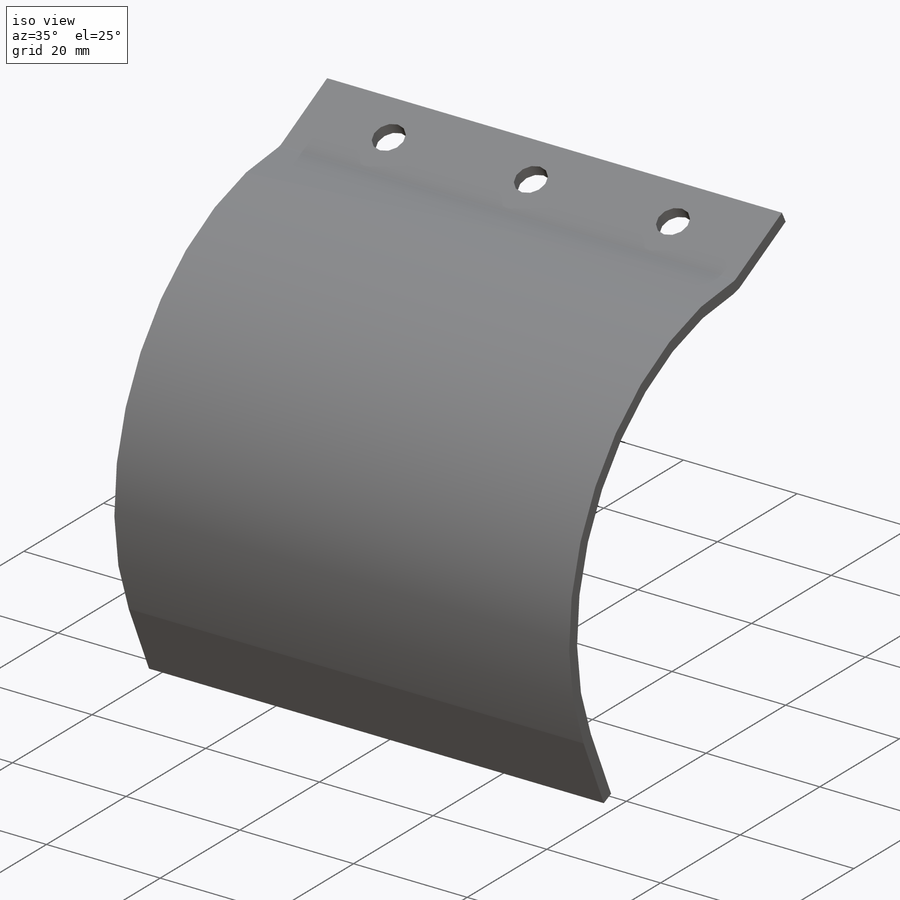
[diagram: iso view]
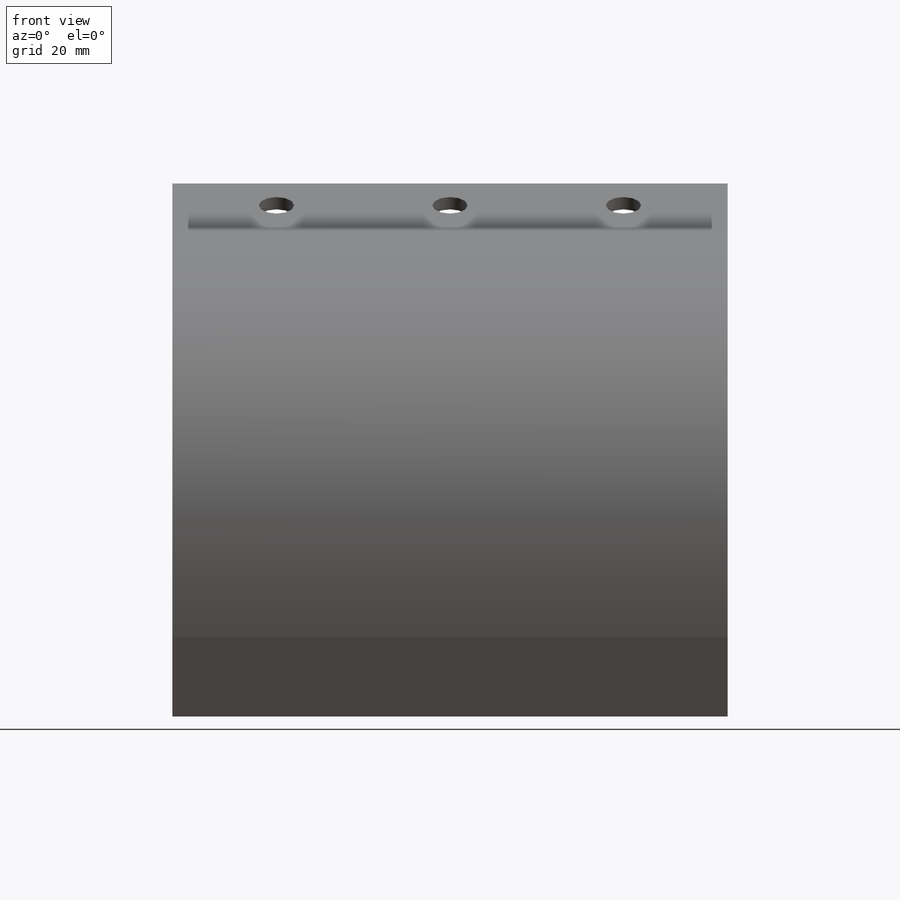
[diagram: front view]
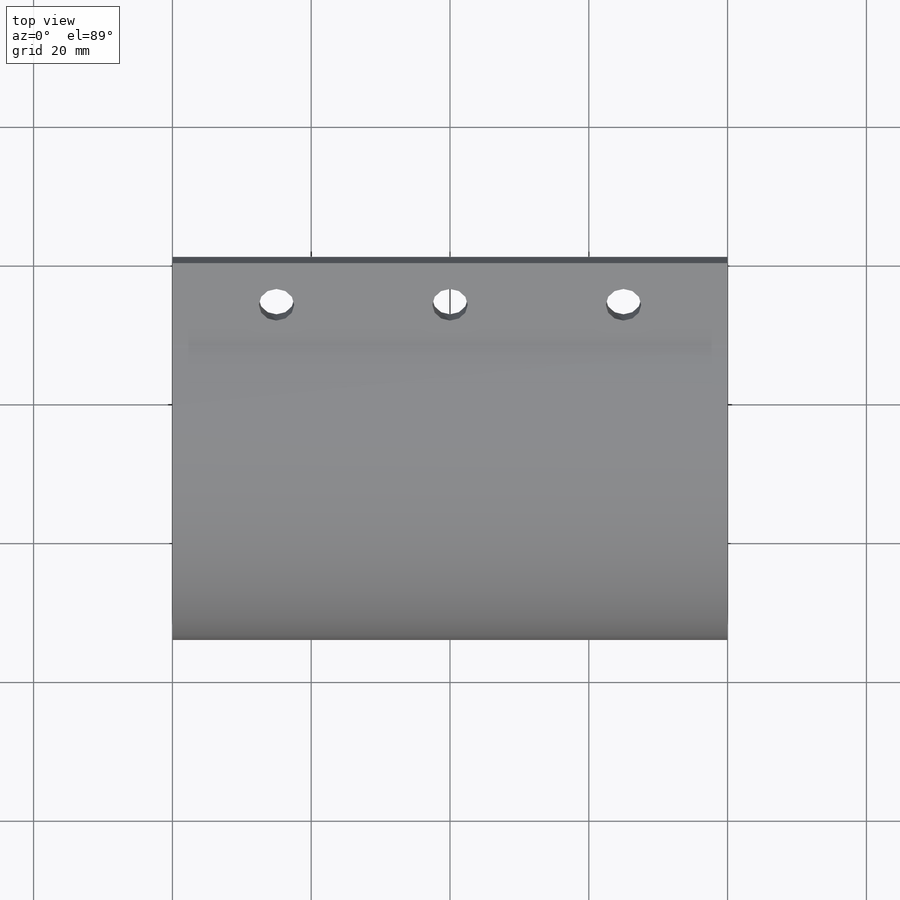
[diagram: top view]
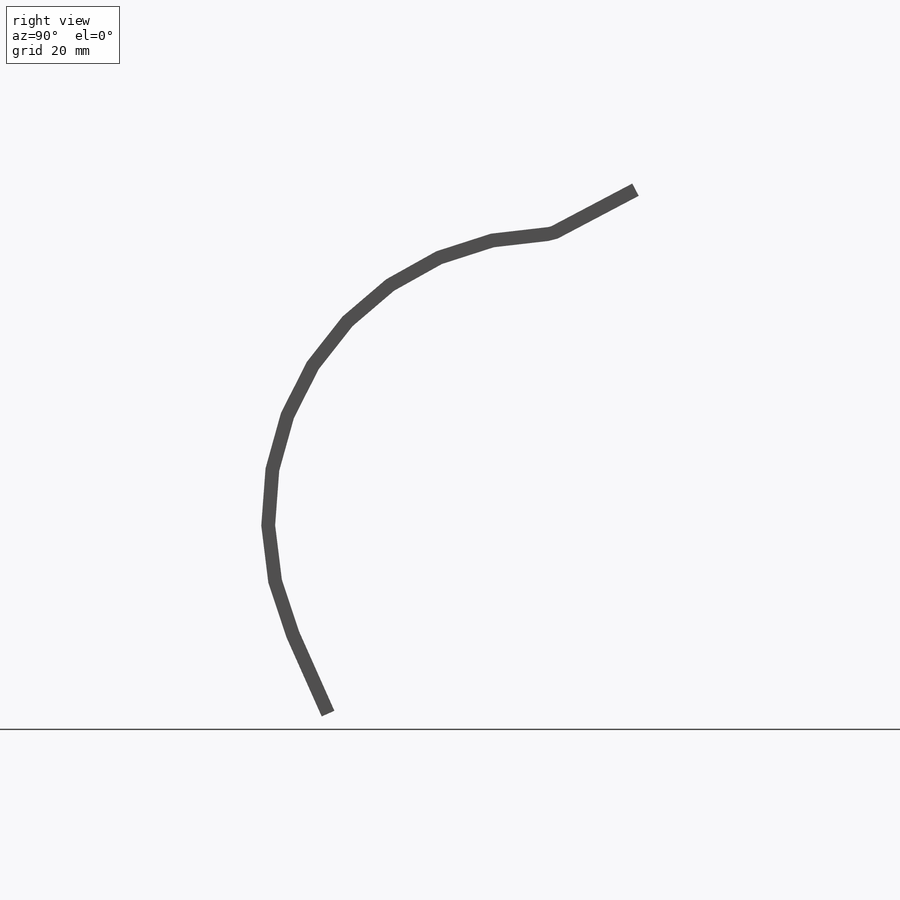
[diagram: right view]
SOLIDWORKS PART (.sldprt)
format: sldprt  version: not decoded by parser v0  size: 254,976 bytes
history: native  units: mm
features: sketch x7, plane x3, sheet_metal_op x2, material x1, hole x1, fillet x1 + 1 further entry (+9 scaffold rows collapsed; 1 parser-record rows omitted)
feature tree (26):
  scaffold x9  (default folders/planes/origin — collapsed)
  material  "Material <nicht festgelegt>"
  plane  "Ebene vorne"
  plane  "Ebene oben"
  plane  "Ebene rechts"
  sketch  "Skizze1"  dims[c1.D2=80.0mm c1.D1=~35.82192mm c2.D1=~49.245611deg c3.D1=~485.201532mm c3.D3=12.4mm c3.D4=46.5mm c3.D5=~1151.917306mm c3.D6=27.7mm c3.D7=31.5mm c4.D1=80.0mm c4.D6=10.0mm c4.D7=5.0mm]
  hole  "Ø5.1 (5.1) Durchmesser Bohrung1"  Diameter=5.1mm Depth=68.355491mm
  sketch  "Skizze3"  dims[D1=50.0mm D2=25.0mm]
  sketch  "Skizze2"  dims[hole-wizard template sketch: 44 standard entries collapsed; hole parameters kept: c7.Bohrerdurchmesser=5.1mm c7.Bohrungstiefe=~68.355491mm]
  fillet  "Verrundung1"  Radius=1mm Biegung-Rundung8=0
  sketch  "Biegung-Linien7"
  sketch  "Rahmen7"
  sheet_metal_op  "Blech6"
  "Abwicklung6"
  sketch  "Biegung-Linien8"
  sketch  "Rahmen8"
  sheet_metal_op  "Abwickeln-<Biegung-Rundung8>1"
  parser-record x1  (decoder bookkeeping rows leaked as tree rows — omitted from the tree; the rows remain in map.json)
decode coverage: 5 of 11 modeling features carry decoded parameters; 1 rows unclassified (native names shown)
note: ~ marks probable driven/reference dimensions
note: suppression state not decoded; provenance and decode notes live in map.json
